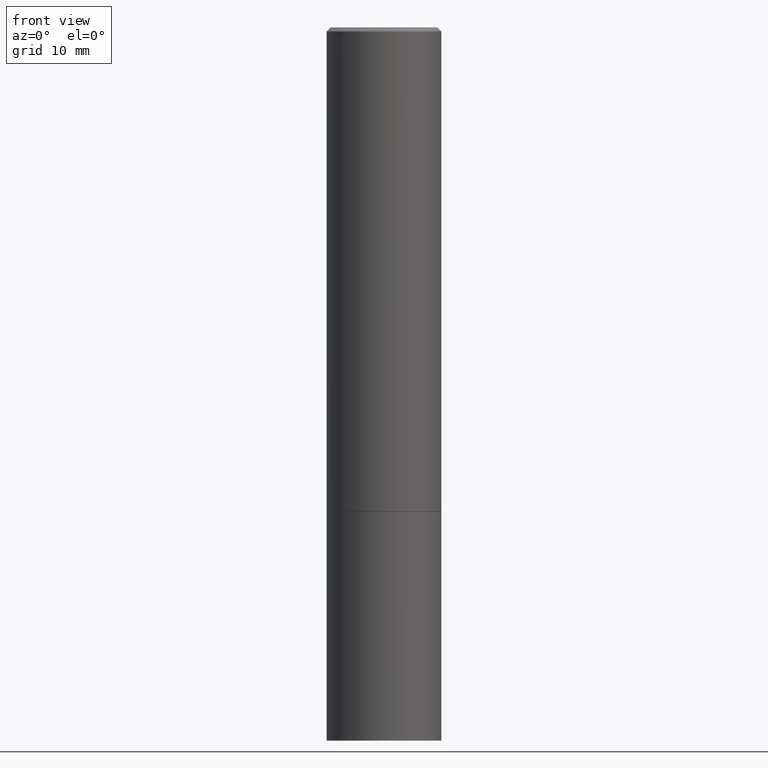
[diagram: clean part render]
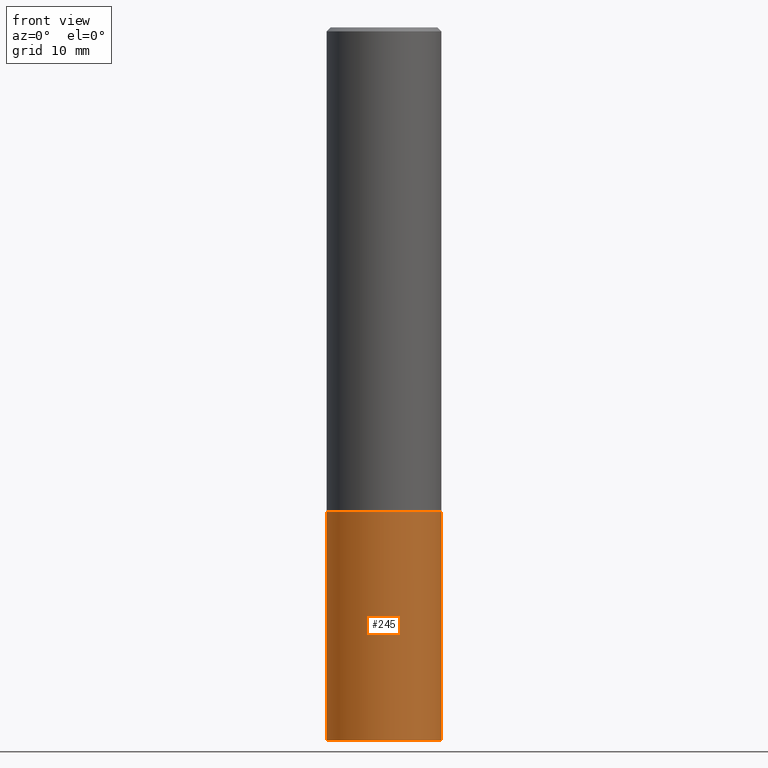
[diagram: same view with one face highlighted and labeled with its STEP entity id]
A machine part, front view. The second image highlights one B-rep face of the part: STEP entity #245.
In plain terms, the highlighted cylindrical surface (partial cylindrical patch) has radius 7.1437 mm, axis along (-0, 0, 1).
Its self-contained STEP definition (entity closure, byte-faithful):
#12 = EDGE_CURVE ( 'NONE', #108, #171, #167, .T. ) ;
#20 = ORIENTED_EDGE ( 'NONE', *, *, #30, .T. ) ;
#28 = VECTOR ( 'NONE', #112, 39.37007874015748143 ) ;
#30 = EDGE_CURVE ( 'NONE', #283, #171, #81, .T. ) ;
#49 = AXIS2_PLACEMENT_3D ( 'NONE', #362, #226, #102 ) ;
#60 = AXIS2_PLACEMENT_3D ( 'NONE', #254, #109, #222 ) ;
#66 = ORIENTED_EDGE ( 'NONE', *, *, #316, .T. ) ;
#81 = LINE ( 'NONE', #262, #28 ) ;
#84 = CARTESIAN_POINT ( 'NONE',  ( 8.559140821647976968E-29, -1.222018468595100934E-14, -3.500000000000000000 ) ) ;
#87 = DIRECTION ( 'NONE',  ( 1.000000000000000000, -6.982962677686269866E-15, 0.000000000000000000 ) ) ;
#102 = DIRECTION ( 'NONE',  ( 1.000000000000000000, -6.982962677686269866E-15, 0.000000000000000000 ) ) ;
#108 = VERTEX_POINT ( 'NONE', #225 ) ;
#109 = DIRECTION ( 'NONE',  ( -2.445468806185136597E-29, 3.491481338843145583E-15, 1.000000000000000000 ) ) ;
#112 = DIRECTION ( 'NONE',  ( -2.445468806185136877E-29, 3.491481338843145188E-15, 1.000000000000000000 ) ) ;
#130 = CYLINDRICAL_SURFACE ( 'NONE', #60, 0.2812500000000000000 ) ;
#146 = VECTOR ( 'NONE', #317, 39.37007874015748143 ) ;
#167 = CIRCLE ( 'NONE', #49, 0.2812500000000000000 ) ;
#171 = VERTEX_POINT ( 'NONE', #188 ) ;
#188 = CARTESIAN_POINT ( 'NONE',  ( 0.2812500000000000000, -1.025622643285173184E-14, -2.374999999999999556 ) ) ;
#194 = VERTEX_POINT ( 'NONE', #305 ) ;
#197 = CARTESIAN_POINT ( 'NONE',  ( -0.2812500000000000000, 1.998401444325281773E-15, -1.383450494134192269E-29 ) ) ;
#200 = ORIENTED_EDGE ( 'NONE', *, *, #12, .F. ) ;
#222 = DIRECTION ( 'NONE',  ( 1.000000000000000000, -6.982962677686266711E-15, 4.876176775795935793E-29 ) ) ;
#225 = CARTESIAN_POINT ( 'NONE',  ( -0.2812500000000000000, -8.257824988526456379E-15, -2.374999999999999556 ) ) ;
#226 = DIRECTION ( 'NONE',  ( -2.445468806185136597E-29, 3.491481338843145583E-15, 1.000000000000000000 ) ) ;
#234 = DIRECTION ( 'NONE',  ( -2.445468806185136597E-29, 3.491481338843145583E-15, 1.000000000000000000 ) ) ;
#244 = AXIS2_PLACEMENT_3D ( 'NONE', #84, #234, #87 ) ;
#245 = ADVANCED_FACE ( 'NONE', ( #257 ), #130, .T. ) ;
#249 = EDGE_CURVE ( 'NONE', #194, #108, #341, .T. ) ;
#254 = CARTESIAN_POINT ( 'NONE',  ( 0.000000000000000000, 0.000000000000000000, 0.000000000000000000 ) ) ;
#257 = FACE_OUTER_BOUND ( 'NONE', #326, .T. ) ;
#262 = CARTESIAN_POINT ( 'NONE',  ( 0.2812500000000000000, -1.963958253099262512E-15, 1.371424718192607012E-29 ) ) ;
#283 = VERTEX_POINT ( 'NONE', #339 ) ;
#299 = ORIENTED_EDGE ( 'NONE', *, *, #249, .F. ) ;
#305 = CARTESIAN_POINT ( 'NONE',  ( -0.2812500000000000000, -8.257824988526456379E-15, -3.500000000000000000 ) ) ;
#316 = EDGE_CURVE ( 'NONE', #194, #283, #354, .T. ) ;
#317 = DIRECTION ( 'NONE',  ( -2.445468806185136877E-29, 3.491481338843145188E-15, 1.000000000000000000 ) ) ;
#326 = EDGE_LOOP ( 'NONE', ( #299, #66, #20, #200 ) ) ;
#339 = CARTESIAN_POINT ( 'NONE',  ( 0.2812500000000000000, -1.418414293905027264E-14, -3.500000000000000000 ) ) ;
#341 = LINE ( 'NONE', #197, #146 ) ;
#354 = CIRCLE ( 'NONE', #244, 0.2812500000000000000 ) ;
#362 = CARTESIAN_POINT ( 'NONE',  ( 5.807988414689698296E-29, -8.292268179752468540E-15, -2.374999999999999556 ) ) ;